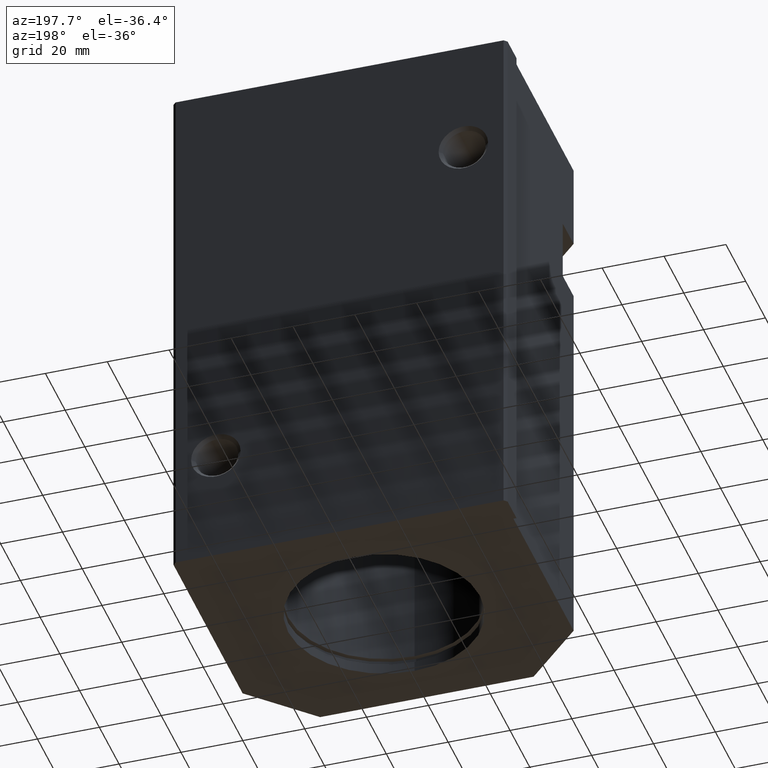
[diagram: clean part render]
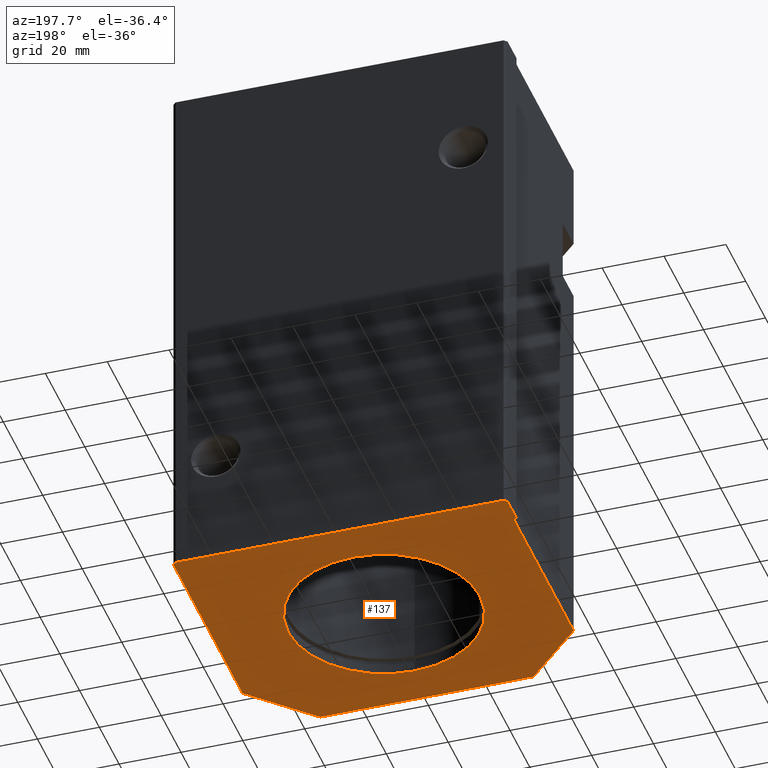
[diagram: same view with one face highlighted and labeled with its STEP entity id]
A machine part, auxiliary view. The second image highlights one B-rep face of the part: STEP entity #137.
In plain terms, the highlighted planar face has unit normal (0, 0, 1).
Its self-contained STEP definition (entity closure, byte-faithful):
#137 = ADVANCED_FACE( '', ( #279, #280 ), #281, .F. );
#279 = FACE_BOUND( '', #422, .T. );
#280 = FACE_OUTER_BOUND( '', #423, .T. );
#281 = PLANE( '', #424 );
#422 = EDGE_LOOP( '', ( #899, #900 ) );
#423 = EDGE_LOOP( '', ( #901, #902, #903, #904, #905, #906, #907, #908, #909, #910 ) );
#424 = AXIS2_PLACEMENT_3D( '', #911, #912, #913 );
#899 = ORIENTED_EDGE( '', *, *, #941, .T. );
#900 = ORIENTED_EDGE( '', *, *, #1032, .T. );
#901 = ORIENTED_EDGE( '', *, *, #1063, .F. );
#902 = ORIENTED_EDGE( '', *, *, #1048, .F. );
#903 = ORIENTED_EDGE( '', *, *, #1052, .F. );
#904 = ORIENTED_EDGE( '', *, *, #1054, .F. );
#905 = ORIENTED_EDGE( '', *, *, #1022, .F. );
#906 = ORIENTED_EDGE( '', *, *, #1017, .F. );
#907 = ORIENTED_EDGE( '', *, *, #1057, .F. );
#908 = ORIENTED_EDGE( '', *, *, #1058, .F. );
#909 = ORIENTED_EDGE( '', *, *, #1028, .F. );
#910 = ORIENTED_EDGE( '', *, *, #1061, .F. );
#911 = CARTESIAN_POINT( '', ( 0.000000000000000, 0.000000000000000, 0.000000000000000 ) );
#912 = DIRECTION( '', ( 0.000000000000000, 0.000000000000000, 1.00000000000000 ) );
#913 = DIRECTION( '', ( 1.00000000000000, 0.000000000000000, 0.000000000000000 ) );
#941 = EDGE_CURVE( '', #1113, #1117, #1119, .T. );
#1017 = EDGE_CURVE( '', #1244, #1246, #1247, .T. );
#1022 = EDGE_CURVE( '', #1246, #1254, #1255, .T. );
#1028 = EDGE_CURVE( '', #1263, #1265, #1266, .T. );
#1032 = EDGE_CURVE( '', #1117, #1113, #1271, .T. );
#1048 = EDGE_CURVE( '', #1288, #1290, #1291, .T. );
#1052 = EDGE_CURVE( '', #1295, #1288, #1297, .T. );
#1054 = EDGE_CURVE( '', #1254, #1295, #1299, .T. );
#1057 = EDGE_CURVE( '', #1301, #1244, #1303, .T. );
#1058 = EDGE_CURVE( '', #1265, #1301, #1304, .T. );
#1061 = EDGE_CURVE( '', #1307, #1263, #1309, .T. );
#1063 = EDGE_CURVE( '', #1290, #1307, #1311, .T. );
#1113 = VERTEX_POINT( '', #1373 );
#1117 = VERTEX_POINT( '', #1378 );
#1119 = CIRCLE( '', #1381, 31.0000000000000 );
#1244 = VERTEX_POINT( '', #1592 );
#1246 = VERTEX_POINT( '', #1595 );
#1247 = LINE( '', #1596, #1597 );
#1254 = VERTEX_POINT( '', #1608 );
#1255 = LINE( '', #1609, #1610 );
#1263 = VERTEX_POINT( '', #1622 );
#1265 = VERTEX_POINT( '', #1625 );
#1266 = LINE( '', #1626, #1627 );
#1271 = CIRCLE( '', #1635, 31.0000000000000 );
#1288 = VERTEX_POINT( '', #1653 );
#1290 = VERTEX_POINT( '', #1656 );
#1291 = LINE( '', #1657, #1658 );
#1295 = VERTEX_POINT( '', #1664 );
#1297 = LINE( '', #1667, #1668 );
#1299 = LINE( '', #1671, #1672 );
#1301 = VERTEX_POINT( '', #1675 );
#1303 = LINE( '', #1678, #1679 );
#1304 = LINE( '', #1680, #1681 );
#1307 = VERTEX_POINT( '', #1685 );
#1309 = LINE( '', #1688, #1689 );
#1311 = LINE( '', #1692, #1693 );
#1373 = CARTESIAN_POINT( '', ( -7.59255939369874E-015, 76.0000000000000, 0.000000000000000 ) );
#1378 = CARTESIAN_POINT( '', ( 3.79627969684888E-015, 14.0000000000000, 0.000000000000000 ) );
#1381 = AXIS2_PLACEMENT_3D( '', #1747, #1748, #1749 );
#1592 = CARTESIAN_POINT( '', ( 35.0000000000000, 0.000000000000000, 0.000000000000000 ) );
#1595 = CARTESIAN_POINT( '', ( 54.0000000000000, 19.0000000000000, 0.000000000000000 ) );
#1596 = CARTESIAN_POINT( '', ( 35.0000000000000, 0.000000000000000, 0.000000000000000 ) );
#1597 = VECTOR( '', #1895, 1.00000000000000 );
#1608 = CARTESIAN_POINT( '', ( 54.0000000000000, 89.0000000000000, 0.000000000000000 ) );
#1609 = CARTESIAN_POINT( '', ( 54.0000000000000, 19.0000000000000, 0.000000000000000 ) );
#1610 = VECTOR( '', #1900, 1.00000000000000 );
#1622 = CARTESIAN_POINT( '', ( -53.0000000000000, 80.0000000000000, 0.000000000000000 ) );
#1625 = CARTESIAN_POINT( '', ( -53.0000000000000, 19.0000000000000, 0.000000000000000 ) );
#1626 = CARTESIAN_POINT( '', ( -53.0000000000000, 80.0000000000000, 0.000000000000000 ) );
#1627 = VECTOR( '', #1906, 1.00000000000000 );
#1635 = AXIS2_PLACEMENT_3D( '', #1910, #1911, #1912 );
#1653 = CARTESIAN_POINT( '', ( -53.0000000000000, 90.0000000000000, 0.000000000000000 ) );
#1656 = CARTESIAN_POINT( '', ( -54.0000000000000, 89.0000000000000, 0.000000000000000 ) );
#1657 = CARTESIAN_POINT( '', ( -53.0000000000000, 90.0000000000000, 0.000000000000000 ) );
#1658 = VECTOR( '', #1954, 1.00000000000000 );
#1664 = CARTESIAN_POINT( '', ( 53.0000000000000, 90.0000000000000, 0.000000000000000 ) );
#1667 = CARTESIAN_POINT( '', ( 53.0000000000000, 90.0000000000000, 0.000000000000000 ) );
#1668 = VECTOR( '', #1958, 1.00000000000000 );
#1671 = CARTESIAN_POINT( '', ( 54.0000000000000, 89.0000000000000, 0.000000000000000 ) );
#1672 = VECTOR( '', #1960, 1.00000000000000 );
#1675 = CARTESIAN_POINT( '', ( -34.0000000000000, 0.000000000000000, 0.000000000000000 ) );
#1678 = CARTESIAN_POINT( '', ( -34.0000000000000, 0.000000000000000, 0.000000000000000 ) );
#1679 = VECTOR( '', #1963, 1.00000000000000 );
#1680 = CARTESIAN_POINT( '', ( -53.0000000000000, 19.0000000000000, 0.000000000000000 ) );
#1681 = VECTOR( '', #1964, 1.00000000000000 );
#1685 = CARTESIAN_POINT( '', ( -54.0000000000000, 80.0000000000000, 0.000000000000000 ) );
#1688 = CARTESIAN_POINT( '', ( -54.0000000000000, 80.0000000000000, 0.000000000000000 ) );
#1689 = VECTOR( '', #1967, 1.00000000000000 );
#1692 = CARTESIAN_POINT( '', ( -54.0000000000000, 89.0000000000000, 0.000000000000000 ) );
#1693 = VECTOR( '', #1969, 1.00000000000000 );
#1747 = CARTESIAN_POINT( '', ( 0.000000000000000, 45.0000000000000, 0.000000000000000 ) );
#1748 = DIRECTION( '', ( 0.000000000000000, 0.000000000000000, 1.00000000000000 ) );
#1749 = DIRECTION( '', ( -2.44921270764460E-016, 1.00000000000000, 0.000000000000000 ) );
#1895 = DIRECTION( '', ( 0.707106781186548, 0.707106781186548, 0.000000000000000 ) );
#1900 = DIRECTION( '', ( 0.000000000000000, 1.00000000000000, 0.000000000000000 ) );
#1906 = DIRECTION( '', ( 0.000000000000000, -1.00000000000000, 0.000000000000000 ) );
#1910 = CARTESIAN_POINT( '', ( 0.000000000000000, 45.0000000000000, 0.000000000000000 ) );
#1911 = DIRECTION( '', ( 0.000000000000000, 0.000000000000000, 1.00000000000000 ) );
#1912 = DIRECTION( '', ( -2.44921270764460E-016, 1.00000000000000, 0.000000000000000 ) );
#1954 = DIRECTION( '', ( -0.707106781186548, -0.707106781186548, 0.000000000000000 ) );
#1958 = DIRECTION( '', ( -1.00000000000000, 0.000000000000000, 0.000000000000000 ) );
#1960 = DIRECTION( '', ( -0.707106781186548, 0.707106781186548, 0.000000000000000 ) );
#1963 = DIRECTION( '', ( 1.00000000000000, 0.000000000000000, 0.000000000000000 ) );
#1964 = DIRECTION( '', ( 0.707106781186548, -0.707106781186548, 0.000000000000000 ) );
#1967 = DIRECTION( '', ( 1.00000000000000, 0.000000000000000, 0.000000000000000 ) );
#1969 = DIRECTION( '', ( 0.000000000000000, -1.00000000000000, 0.000000000000000 ) );